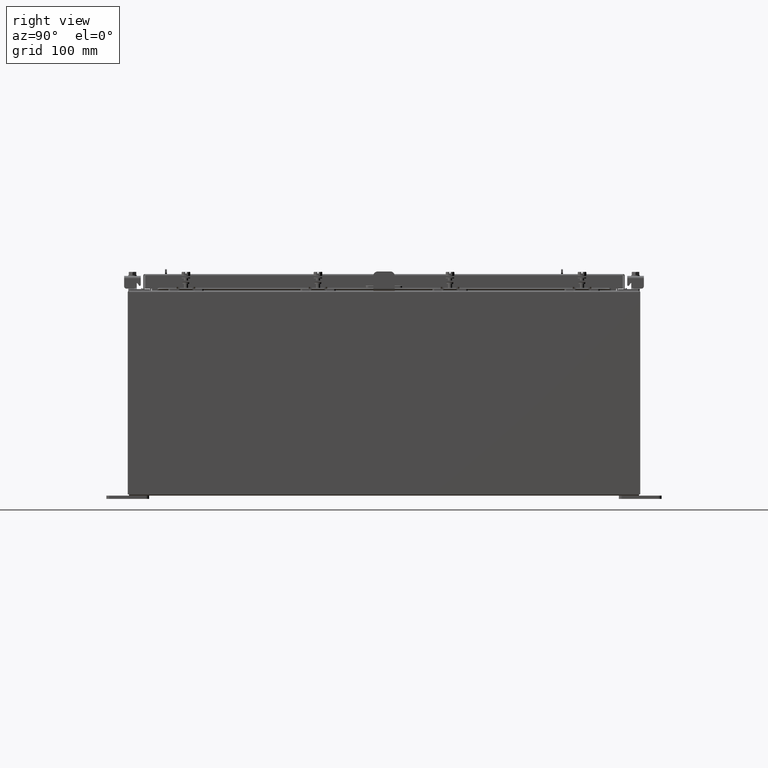
[diagram: clean part render]
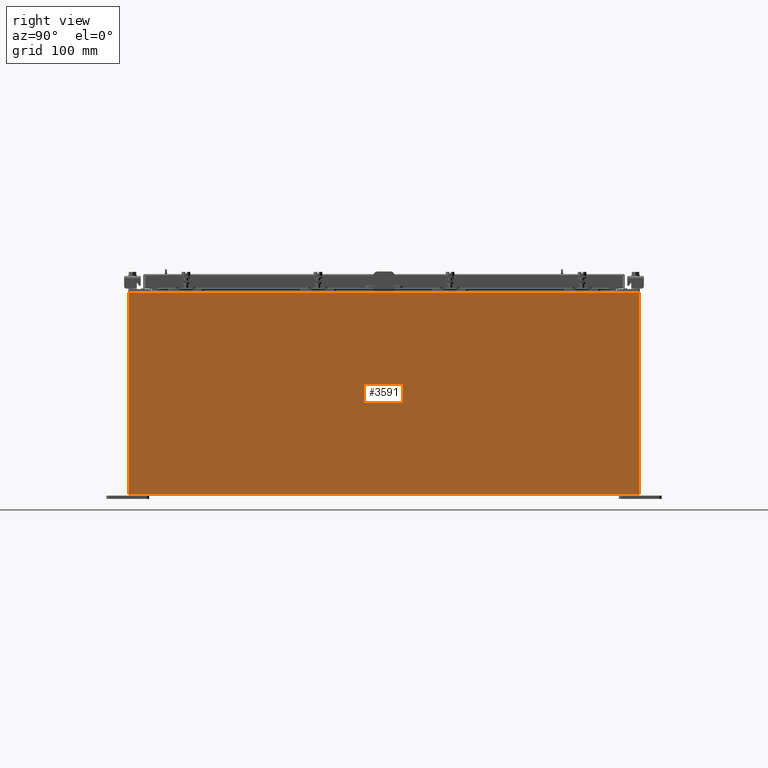
[diagram: same view with one face highlighted and labeled with its STEP entity id]
A machine part, right view. The second image highlights one B-rep face of the part: STEP entity #3591.
In plain terms, the highlighted planar face has unit normal (-1, 0, 0).
Its self-contained STEP definition (entity closure, byte-faithful):
#257 = VERTEX_POINT ( 'NONE', #10303 ) ;
#613 = EDGE_LOOP ( 'NONE', ( #14723, #7158, #13844, #17222 ) ) ;
#1654 = LINE ( 'NONE', #9714, #6932 ) ;
#2946 = EDGE_CURVE ( 'NONE', #8832, #17618, #12826, .T. ) ;
#3591 = ADVANCED_FACE ( 'NONE', ( #21173 ), #4786, .F. ) ;
#3717 = CARTESIAN_POINT ( 'NONE',  ( 12.00000000000003700, 14.92529999999999800, 11.83760000000000000 ) ) ;
#4326 = VECTOR ( 'NONE', #18017, 39.37007874015748100 ) ;
#4786 = PLANE ( 'NONE',  #6551 ) ;
#6551 = AXIS2_PLACEMENT_3D ( 'NONE', #8379, #20909, #10176 ) ;
#6932 = VECTOR ( 'NONE', #7898, 39.37007874015748100 ) ;
#7158 = ORIENTED_EDGE ( 'NONE', *, *, #17018, .T. ) ;
#7898 = DIRECTION ( 'NONE',  ( 3.482016343714355500E-015, -1.832640180902292400E-016, 1.000000000000000000 ) ) ;
#7927 = VECTOR ( 'NONE', #14660, 39.37007874015748100 ) ;
#8379 = CARTESIAN_POINT ( 'NONE',  ( 11.99999999999999600, 0.0000000000000000000, -4.204500978058383300E-014 ) ) ;
#8832 = VERTEX_POINT ( 'NONE', #10322 ) ;
#9714 = CARTESIAN_POINT ( 'NONE',  ( 11.99999999999999600, 14.92530000000000000, -3.930973933138173100E-014 ) ) ;
#10176 = DIRECTION ( 'NONE',  ( 3.482016343714355100E-015, 0.0000000000000000000, 1.000000000000000000 ) ) ;
#10303 = CARTESIAN_POINT ( 'NONE',  ( 12.00000000000003700, 14.92529999999999800, 11.83760000000000000 ) ) ;
#10322 = CARTESIAN_POINT ( 'NONE',  ( 11.99999999999999600, 14.92529999999999800, 0.01299999999999766100 ) ) ;
#12147 = CARTESIAN_POINT ( 'NONE',  ( 12.00000000000003700, -14.92529999999999800, 11.83760000000000000 ) ) ;
#12262 = VECTOR ( 'NONE', #18966, 39.37007874015748100 ) ;
#12731 = LINE ( 'NONE', #12887, #7927 ) ;
#12826 = LINE ( 'NONE', #22555, #12262 ) ;
#12887 = CARTESIAN_POINT ( 'NONE',  ( 11.99999999999999600, -14.92530000000000000, -3.930973933138173100E-014 ) ) ;
#13844 = ORIENTED_EDGE ( 'NONE', *, *, #2946, .F. ) ;
#14394 = EDGE_CURVE ( 'NONE', #8832, #257, #1654, .T. ) ;
#14409 = LINE ( 'NONE', #3717, #4326 ) ;
#14660 = DIRECTION ( 'NONE',  ( -3.482016343714355500E-015, -1.832640180902292400E-016, -1.000000000000000000 ) ) ;
#14723 = ORIENTED_EDGE ( 'NONE', *, *, #22583, .T. ) ;
#16657 = VERTEX_POINT ( 'NONE', #12147 ) ;
#17018 = EDGE_CURVE ( 'NONE', #16657, #17618, #12731, .T. ) ;
#17222 = ORIENTED_EDGE ( 'NONE', *, *, #14394, .T. ) ;
#17618 = VERTEX_POINT ( 'NONE', #18070 ) ;
#18017 = DIRECTION ( 'NONE',  ( -0.0000000000000000000, -1.000000000000000000, -0.0000000000000000000 ) ) ;
#18070 = CARTESIAN_POINT ( 'NONE',  ( 11.99999999999999600, -14.92530000000000000, 0.01299999999999997900 ) ) ;
#18966 = DIRECTION ( 'NONE',  ( 2.549319440810500300E-031, -1.000000000000000000, 7.321388497823869400E-017 ) ) ;
#20909 = DIRECTION ( 'NONE',  ( -1.000000000000000000, 0.0000000000000000000, 3.482016343714355100E-015 ) ) ;
#21173 = FACE_OUTER_BOUND ( 'NONE', #613, .T. ) ;
#22555 = CARTESIAN_POINT ( 'NONE',  ( 11.99999999999999600, -14.92529999999999800, 0.01299999999999984700 ) ) ;
#22583 = EDGE_CURVE ( 'NONE', #257, #16657, #14409, .T. ) ;